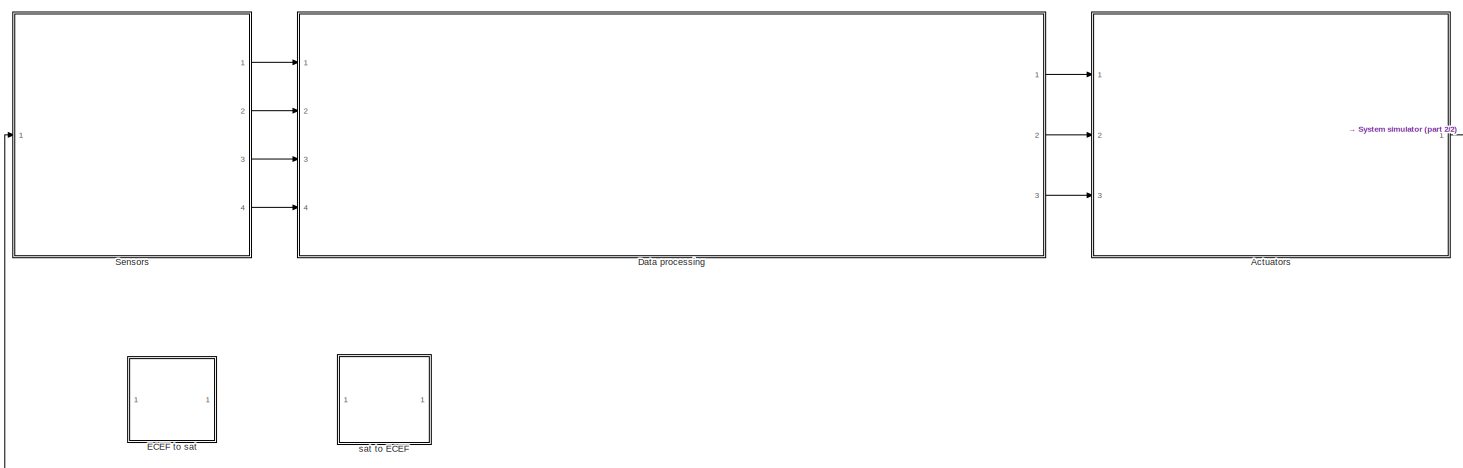
[diagram: root canvas - part 1/2, full width, top band]
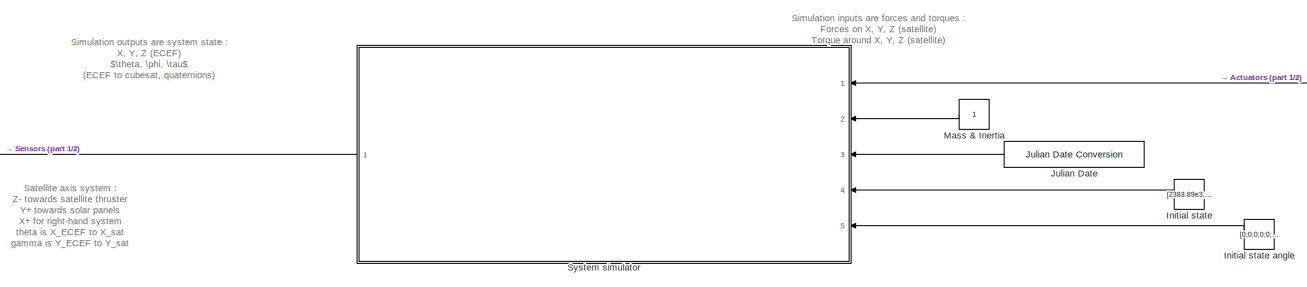
[diagram: root canvas - part 2/2, full width, bottom band]
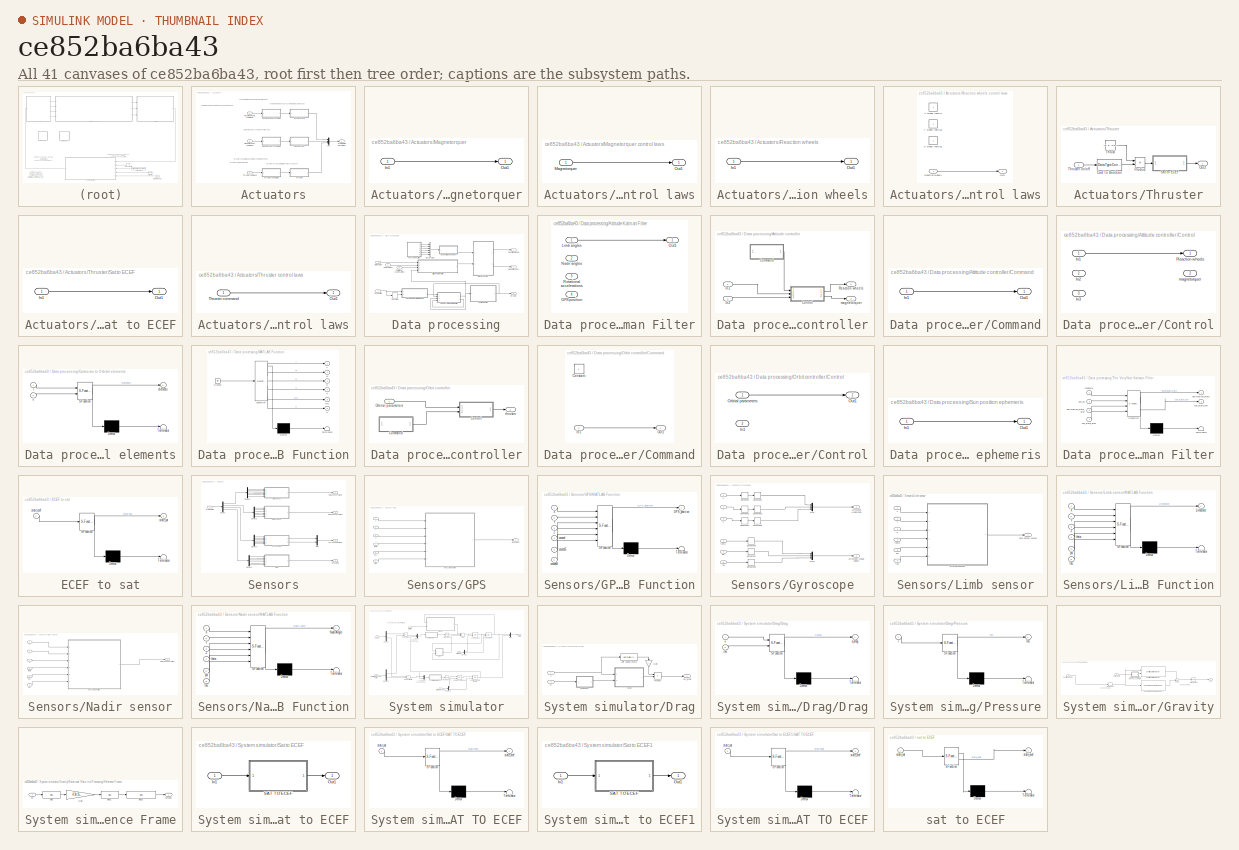
[diagram: thumbnail index - all 41 canvases of the model, root first then tree order]
MODEL slx_ce852ba6ba43
KIND model
CONFIG AbsTol = auto
CONFIG EnableMultiTasking = off
CONFIG FixedStep = auto
CONFIG MaxStep = auto
CONFIG MinStep = auto
CONFIG RelTol = 1e-3
CONFIG SampleTimeConstraint = Unconstrained
CONFIG Solver = VariableStepAuto
CONFIG SolverName = VariableStepAuto
CONFIG StartTime = 0.0
CONFIG StopTime = 10.0
BLOCK [SubSystem] Actuators
  Ports = [3, 1]
  RequestExecContextInheritance = off
BLOCK [SubSystem] Actuators/Magnetorquer
  Ports = [1, 1]
  RequestExecContextInheritance = off
BLOCK [Inport] Actuators/Magnetorquer command
  Port = 2
BLOCK [SubSystem] Actuators/Magnetorquer control laws
  Ports = [1, 1]
  RequestExecContextInheritance = off
BLOCK [Inport] Actuators/Magnetorquer control laws/Magnetorquer
BLOCK [Outport] Actuators/Magnetorquer control laws/Out1
BLOCK [Inport] Actuators/Magnetorquer/In1
BLOCK [Outport] Actuators/Magnetorquer/Out1
BLOCK [Mux] Actuators/Mux
  DisplayOption = bar
  Inputs = 3
  Ports = [3, 1]
BLOCK [SubSystem] Actuators/Reaction wheels
  Ports = [1, 1]
  RequestExecContextInheritance = off
BLOCK [Inport] Actuators/Reaction wheels command
BLOCK [SubSystem] Actuators/Reaction wheels control laws
  Ports = [1, 1]
  RequestExecContextInheritance = off
BLOCK [Outport] Actuators/Reaction wheels control laws/Out1
BLOCK [Inport] Actuators/Reaction wheels control laws/Reaction wheels
BLOCK [Constant] Actuators/Reaction wheels control laws/X wheel inertia
BLOCK [Constant] Actuators/Reaction wheels control laws/Y wheel inertia1
BLOCK [Constant] Actuators/Reaction wheels control laws/Z wheel inertia1
BLOCK [Inport] Actuators/Reaction wheels/In1
BLOCK [Outport] Actuators/Reaction wheels/Out1
BLOCK [Outport] Actuators/System state derivatives
BLOCK [SubSystem] Actuators/Thruster
  Ports = [1, 1]
  RequestExecContextInheritance = off
BLOCK [Inport] Actuators/Thruster command
  Port = 3
BLOCK [SubSystem] Actuators/Thruster control laws
  Ports = [1, 1]
  RequestExecContextInheritance = off
BLOCK [Outport] Actuators/Thruster control laws/Out1
BLOCK [Inport] Actuators/Thruster control laws/Thruster command
BLOCK [DataTypeConversion] Actuators/Thruster/Cast To Boolean
  OutDataTypeStr = boolean
  RndMeth = Floor
  SaturateOnIntegerOverflow = off
BLOCK [Outport] Actuators/Thruster/Out2
BLOCK [Product] Actuators/Thruster/Product
  Ports = [2, 1]
BLOCK [SubSystem] Actuators/Thruster/Sat to ECEF
  Ports = [1, 1]
  RequestExecContextInheritance = off
BLOCK [Inport] Actuators/Thruster/Sat to ECEF/In1
BLOCK [Outport] Actuators/Thruster/Sat to ECEF/Out1
BLOCK [Constant] Actuators/Thruster/Thrust
  Value = [0; 0; -0.0001]
BLOCK [Inport] Actuators/Thruster/Thruster on//off
BLOCK [SubSystem] Data processing
  Ports = [4, 3]
  RequestExecContextInheritance = off
BLOCK [SubSystem] Data processing/Attitude Kalman Filter
  Ports = [4, 1]
  RequestExecContextInheritance = off
BLOCK [Inport] Data processing/Attitude Kalman Filter/GPS position
  Port = 4
BLOCK [Inport] Data processing/Attitude Kalman Filter/Limb angles
BLOCK [Inport] Data processing/Attitude Kalman Filter/Nadir angles
  Port = 2
BLOCK [Outport] Data processing/Attitude Kalman Filter/Out1
BLOCK [Inport] Data processing/Attitude Kalman Filter/Rotational accelerations
  Port = 3
BLOCK [SubSystem] Data processing/Attitude controller
  Ports = [2, 2]
  RequestExecContextInheritance = off
BLOCK [SubSystem] Data processing/Attitude controller/Command
  Ports = [1, 1]
  RequestExecContextInheritance = off
BLOCK [Inport] Data processing/Attitude controller/Command/In1
BLOCK [Outport] Data processing/Attitude controller/Command/Out1
BLOCK [SubSystem] Data processing/Attitude controller/Control
  Ports = [3, 2]
  RequestExecContextInheritance = off
BLOCK [Inport] Data processing/Attitude controller/Control/In1
BLOCK [Inport] Data processing/Attitude controller/Control/In2
  Port = 2
BLOCK [Inport] Data processing/Attitude controller/Control/In3
  Port = 3
BLOCK [Outport] Data processing/Attitude controller/Control/Reaction wheels
BLOCK [Outport] Data processing/Attitude controller/Control/magnetorquer
  Port = 2
BLOCK [Inport] Data processing/Attitude controller/In1
BLOCK [Inport] Data processing/Attitude controller/In2
  Port = 2
BLOCK [Outport] Data processing/Attitude controller/Reaction wheels
BLOCK [Outport] Data processing/Attitude controller/magnetorquer
  Port = 2
BLOCK [BusCreator] Data processing/Bus Creator
  DisplayOption = bar
  InheritFromInputs = on
  Inputs = 6
  Ports = [6, 1]
BLOCK [SubSystem] Data processing/Cartesian to Orbital elements
  ErrorFcn = Stateflow.Translate.translate
  PermitHierarchicalResolution = ExplicitOnly
  Ports = [2, 1]
  RequestExecContextInheritance = off
  SFBlockType = MATLAB Function
  TreatAsAtomicUnit = on
BLOCK [Demux] Data processing/Cartesian to Orbital elements/ Demux 
  Outputs = 1
  Ports = [1, 1]
BLOCK [S-Function] Data processing/Cartesian to Orbital elements/ SFunction 
  EnableBusSupport = off
  FunctionName = sf_sfun
  PortCounts = [2 2]
  Ports = [2, 2]
  SFcnIsStateOwnerBlock = off
  SFunctionDeploymentMode = off
  Tag = Stateflow S-Function 9
BLOCK [Terminator] Data processing/Cartesian to Orbital elements/ Terminator 
BLOCK [Outport] Data processing/Cartesian to Orbital elements/elements
BLOCK [Inport] Data processing/Cartesian to Orbital elements/r
BLOCK [Inport] Data processing/Cartesian to Orbital elements/v
  Port = 2
BLOCK [Derivative] Data processing/Derivative
BLOCK [Inport] Data processing/GPS position
  Port = 4
BLOCK [Inport] Data processing/Limb angles
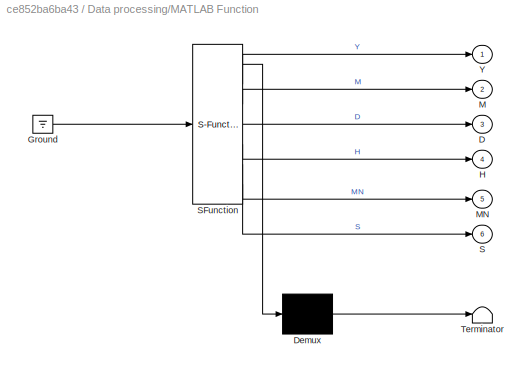
BLOCK [SubSystem] Data processing/MATLAB Function
  ErrorFcn = Stateflow.Translate.translate
  PermitHierarchicalResolution = ExplicitOnly
  Ports = [0, 6]
  RequestExecContextInheritance = off
  SFBlockType = MATLAB Function
  TreatAsAtomicUnit = on
BLOCK [Demux] Data processing/MATLAB Function/ Demux 
  Outputs = 1
  Ports = [1, 1]
BLOCK [Ground] Data processing/MATLAB Function/ Ground 
BLOCK [S-Function] Data processing/MATLAB Function/ SFunction 
  EnableBusSupport = off
  FunctionName = sf_sfun
  PortCounts = [1 7]
  Ports = [1, 7]
  SFcnIsStateOwnerBlock = off
  SFunctionDeploymentMode = off
  Tag = Stateflow S-Function 2
BLOCK [Terminator] Data processing/MATLAB Function/ Terminator 
BLOCK [Outport] Data processing/MATLAB Function/D
  Port = 3
BLOCK [Outport] Data processing/MATLAB Function/H
  Port = 4
BLOCK [Outport] Data processing/MATLAB Function/M
  Port = 2
BLOCK [Outport] Data processing/MATLAB Function/MN
  Port = 5
BLOCK [Outport] Data processing/MATLAB Function/S
  Port = 6
BLOCK [Outport] Data processing/MATLAB Function/Y
BLOCK [Inport] Data processing/Nadir angles
  Port = 2
BLOCK [SubSystem] Data processing/Orbit controller
  Ports = [1, 1]
  RequestExecContextInheritance = off
BLOCK [SubSystem] Data processing/Orbit controller/Command
  Ports = [1, 1]
  RequestExecContextInheritance = off
BLOCK [Constant] Data processing/Orbit controller/Command/Constant
BLOCK [Inport] Data processing/Orbit controller/Command/In1
BLOCK [Outport] Data processing/Orbit controller/Command/Out1
BLOCK [SubSystem] Data processing/Orbit controller/Control
  Ports = [2, 1]
  RequestExecContextInheritance = off
BLOCK [Inport] Data processing/Orbit controller/Control/In1
  Port = 2
BLOCK [Inport] Data processing/Orbit controller/Control/Orbital parameters
BLOCK [Outport] Data processing/Orbit controller/Control/Out1
BLOCK [Inport] Data processing/Orbit controller/Orbital parameters
BLOCK [Outport] Data processing/Orbit controller/thruster
BLOCK [Outport] Data processing/Reaction wheels
BLOCK [Inport] Data processing/Rotational accelerations
  Port = 3
BLOCK [SubSystem] Data processing/Sun position ephemeris
  Ports = [1, 1]
  RequestExecContextInheritance = off
BLOCK [Inport] Data processing/Sun position ephemeris/In1
BLOCK [Outport] Data processing/Sun position ephemeris/Out1
BLOCK [SubSystem] Data processing/The Very Nice Kalman Filter
  ErrorFcn = Stateflow.Translate.translate
  PermitHierarchicalResolution = ExplicitOnly
  Ports = [4, 2]
  RequestExecContextInheritance = off
  SFBlockType = MATLAB Function
  TreatAsAtomicUnit = on
BLOCK [Demux] Data processing/The Very Nice Kalman Filter/ Demux 
  Outputs = 1
  Ports = [1, 1]
BLOCK [S-Function] Data processing/The Very Nice Kalman Filter/ SFunction 
  EnableBusSupport = off
  FunctionName = sf_sfun
  PortCounts = [4 3]
  Ports = [4, 3]
  SFcnIsStateOwnerBlock = off
  SFunctionDeploymentMode = off
  Tag = Stateflow S-Function 10
BLOCK [Terminator] Data processing/The Very Nice Kalman Filter/ Terminator 
BLOCK [Inport] Data processing/The Very Nice Kalman Filter/action
  Port = 2
BLOCK [Outport] Data processing/The Very Nice Kalman Filter/cov_state_corr
  Port = 2
BLOCK [Inport] Data processing/The Very Nice Kalman Filter/cov_state_prec
  Port = 4
BLOCK [Outport] Data processing/The Very Nice Kalman Filter/estimation_state
BLOCK [Inport] Data processing/The Very Nice Kalman Filter/estimation_state_prec
  Port = 3
BLOCK [Inport] Data processing/The Very Nice Kalman Filter/measure
BLOCK [Outport] Data processing/magnetorquer
  Port = 2
BLOCK [Outport] Data processing/thruster
  Port = 3
BLOCK [SubSystem] ECEF to sat
  Commented = on
  ErrorFcn = Stateflow.Translate.translate
  PermitHierarchicalResolution = ExplicitOnly
  Ports = [1, 1]
  RequestExecContextInheritance = off
  SFBlockType = MATLAB Function
  TreatAsAtomicUnit = on
BLOCK [Demux] ECEF to sat/ Demux 
  Outputs = 1
  Ports = [1, 1]
BLOCK [S-Function] ECEF to sat/ SFunction 
  EnableBusSupport = off
  FunctionName = sf_sfun
  PortCounts = [1 2]
  Ports = [1, 2]
  SFcnIsStateOwnerBlock = off
  SFunctionDeploymentMode = off
  Tag = Stateflow S-Function 1
BLOCK [Terminator] ECEF to sat/ Terminator 
BLOCK [Inport] ECEF to sat/state_ecef
BLOCK [Outport] ECEF to sat/state_sat
BLOCK [Constant] Initial state
  NameLocation = top
  Value = [2383.89e3;2594.67e3;5906.12e3;-2871.828;-5954.63;3774.64]
BLOCK [Constant] Initial state angle
  NameLocation = top
  Value = [0;0;0;0;0;0]
BLOCK [Reference] Julian Date  REF=aerolibconvert2/Julian Date Conversion
  NameLocation = top
  Ports = [0, 1]
  SourceBlock = aerolibconvert2/Julian Date Conversion
  SourceProductBaseCode = AE
  SourceType = JulianDate
BLOCK [Constant] Mass & Inertia
  NameLocation = top
BLOCK [SubSystem] Sensors
  Ports = [1, 4]
  RequestExecContextInheritance = off
BLOCK [Demux] Sensors/Demux
  Ports = [1, 4]
BLOCK [Demux] Sensors/Demux1
  Outputs = 6
  Ports = [1, 6]
BLOCK [Demux] Sensors/Demux2
  Outputs = 6
  Ports = [1, 6]
BLOCK [Demux] Sensors/Demux3
  Outputs = 6
  Ports = [1, 6]
BLOCK [Demux] Sensors/Demux4
  Outputs = 6
  Ports = [1, 6]
BLOCK [SubSystem] Sensors/GPS
  Ports = [6, 1]
  RequestExecContextInheritance = off
BLOCK [Outport] Sensors/GPS output
  Port = 2
BLOCK [Outport] Sensors/GPS/GPS output
BLOCK [SubSystem] Sensors/GPS/MATLAB Function
  ErrorFcn = Stateflow.Translate.translate
  PermitHierarchicalResolution = ExplicitOnly
  Ports = [6, 1]
  RequestExecContextInheritance = off
  SFBlockType = MATLAB Function
  TreatAsAtomicUnit = on
BLOCK [Demux] Sensors/GPS/MATLAB Function/ Demux 
  Outputs = 1
  Ports = [1, 1]
BLOCK [S-Function] Sensors/GPS/MATLAB Function/ SFunction 
  EnableBusSupport = off
  FunctionName = sf_sfun
  PortCounts = [6 2]
  Ports = [6, 2]
  SFcnIsStateOwnerBlock = off
  SFunctionDeploymentMode = off
  Tag = Stateflow S-Function 5
BLOCK [Terminator] Sensors/GPS/MATLAB Function/ Terminator 
BLOCK [Outport] Sensors/GPS/MATLAB Function/GPS_position
BLOCK [Inport] Sensors/GPS/MATLAB Function/X
BLOCK [Inport] Sensors/GPS/MATLAB Function/Y
  Port = 2
BLOCK [Inport] Sensors/GPS/MATLAB Function/Z
  Port = 3
BLOCK [Inport] Sensors/GPS/MATLAB Function/unused
  Port = 4
BLOCK [Inport] Sensors/GPS/MATLAB Function/unused5
  Port = 5
BLOCK [Inport] Sensors/GPS/MATLAB Function/unused6
  Port = 6
BLOCK [Inport] Sensors/GPS/X
BLOCK [Inport] Sensors/GPS/Y
  Port = 2
BLOCK [Inport] Sensors/GPS/Z
  Port = 3
BLOCK [Inport] Sensors/GPS/phi
  Port = 5
BLOCK [Inport] Sensors/GPS/tau
  Port = 6
BLOCK [Inport] Sensors/GPS/theta
  Port = 4
BLOCK [SubSystem] Sensors/Gyroscope
  Ports = [6, 2]
  RequestExecContextInheritance = off
BLOCK [Outport] Sensors/Gyroscope output
  Port = 3
BLOCK [Derivative] Sensors/Gyroscope/Derivative
BLOCK [Derivative] Sensors/Gyroscope/Derivative1
BLOCK [Derivative] Sensors/Gyroscope/Derivative2
BLOCK [Derivative] Sensors/Gyroscope/Derivative3
BLOCK [Derivative] Sensors/Gyroscope/Derivative4
BLOCK [Derivative] Sensors/Gyroscope/Derivative5
BLOCK [Derivative] Sensors/Gyroscope/Derivative6
BLOCK [Derivative] Sensors/Gyroscope/Derivative7
BLOCK [Derivative] Sensors/Gyroscope/Derivative8
BLOCK [Outport] Sensors/Gyroscope/Gyroscope Acceleration
BLOCK [Outport] Sensors/Gyroscope/Gyroscope Angular velocity
  Port = 2
BLOCK [Mux] Sensors/Gyroscope/Mux
  DisplayOption = bar
  Inputs = 3
  Ports = [3, 1]
BLOCK [Mux] Sensors/Gyroscope/Mux1
  DisplayOption = bar
  Inputs = 3
  Ports = [3, 1]
BLOCK [Inport] Sensors/Gyroscope/X
BLOCK [Inport] Sensors/Gyroscope/Y
  Port = 2
BLOCK [Inport] Sensors/Gyroscope/Z
  Port = 3
BLOCK [Inport] Sensors/Gyroscope/phi
  Port = 5
BLOCK [Inport] Sensors/Gyroscope/tau
  Port = 6
BLOCK [Inport] Sensors/Gyroscope/theta
  Port = 4
BLOCK [SubSystem] Sensors/Limb sensor
  Ports = [6, 1]
  RequestExecContextInheritance = off
BLOCK [Outport] Sensors/Limb sensor output
BLOCK [Outport] Sensors/Limb sensor/Limb sensor output 
BLOCK [SubSystem] Sensors/Limb sensor/MATLAB Function
  ErrorFcn = Stateflow.Translate.translate
  PermitHierarchicalResolution = ExplicitOnly
  Ports = [6, 1]
  RequestExecContextInheritance = off
  SFBlockType = MATLAB Function
  TreatAsAtomicUnit = on
BLOCK [Demux] Sensors/Limb sensor/MATLAB Function/ Demux 
  Outputs = 1
  Ports = [1, 1]
BLOCK [S-Function] Sensors/Limb sensor/MATLAB Function/ SFunction 
  EnableBusSupport = off
  FunctionName = sf_sfun
  PortCounts = [6 2]
  Ports = [6, 2]
  SFcnIsStateOwnerBlock = off
  SFunctionDeploymentMode = off
  Tag = Stateflow S-Function 6
BLOCK [Terminator] Sensors/Limb sensor/MATLAB Function/ Terminator 
BLOCK [Outport] Sensors/Limb sensor/MATLAB Function/Limbstate
BLOCK [Inport] Sensors/Limb sensor/MATLAB Function/X
BLOCK [Inport] Sensors/Limb sensor/MATLAB Function/Y
  Port = 2
BLOCK [Inport] Sensors/Limb sensor/MATLAB Function/Z
  Port = 3
BLOCK [Inport] Sensors/Limb sensor/MATLAB Function/phi
  Port = 5
BLOCK [Inport] Sensors/Limb sensor/MATLAB Function/tau
  Port = 6
BLOCK [Inport] Sensors/Limb sensor/MATLAB Function/theta
  Port = 4
BLOCK [Inport] Sensors/Limb sensor/X
BLOCK [Inport] Sensors/Limb sensor/Y
  Port = 2
BLOCK [Inport] Sensors/Limb sensor/Z
  Port = 3
BLOCK [Inport] Sensors/Limb sensor/phi
  Port = 5
BLOCK [Inport] Sensors/Limb sensor/tau
  Port = 6
BLOCK [Inport] Sensors/Limb sensor/theta
  Port = 4
BLOCK [Mux] Sensors/Mux
  DisplayOption = bar
  Inputs = 2
  Ports = [2, 1]
BLOCK [SubSystem] Sensors/Nadir sensor
  Ports = [6, 1]
  RequestExecContextInheritance = off
BLOCK [Outport] Sensors/Nadir sensor output
  Port = 4
BLOCK [SubSystem] Sensors/Nadir sensor/MATLAB Function
  ErrorFcn = Stateflow.Translate.translate
  PermitHierarchicalResolution = ExplicitOnly
  Ports = [6, 1]
  RequestExecContextInheritance = off
  SFBlockType = MATLAB Function
  TreatAsAtomicUnit = on
BLOCK [Demux] Sensors/Nadir sensor/MATLAB Function/ Demux 
  Outputs = 1
  Ports = [1, 1]
BLOCK [S-Function] Sensors/Nadir sensor/MATLAB Function/ SFunction 
  EnableBusSupport = off
  FunctionName = sf_sfun
  PortCounts = [6 2]
  Ports = [6, 2]
  SFcnIsStateOwnerBlock = off
  SFunctionDeploymentMode = off
  Tag = Stateflow S-Function 7
BLOCK [Terminator] Sensors/Nadir sensor/MATLAB Function/ Terminator 
BLOCK [Outport] Sensors/Nadir sensor/MATLAB Function/NadirAngle
BLOCK [Inport] Sensors/Nadir sensor/MATLAB Function/X
BLOCK [Inport] Sensors/Nadir sensor/MATLAB Function/Y
  Port = 2
BLOCK [Inport] Sensors/Nadir sensor/MATLAB Function/Z
  Port = 3
BLOCK [Inport] Sensors/Nadir sensor/MATLAB Function/phi
  Port = 5
BLOCK [Inport] Sensors/Nadir sensor/MATLAB Function/tau
  Port = 6
BLOCK [Inport] Sensors/Nadir sensor/MATLAB Function/theta
  Port = 4
BLOCK [Outport] Sensors/Nadir sensor/Nadir sensor output
BLOCK [Inport] Sensors/Nadir sensor/X
BLOCK [Inport] Sensors/Nadir sensor/Y
  Port = 2
BLOCK [Inport] Sensors/Nadir sensor/Z
  Port = 3
BLOCK [Inport] Sensors/Nadir sensor/phi
  Port = 5
BLOCK [Inport] Sensors/Nadir sensor/tau
  Port = 6
BLOCK [Inport] Sensors/Nadir sensor/theta
  Port = 4
BLOCK [Inport] Sensors/System state
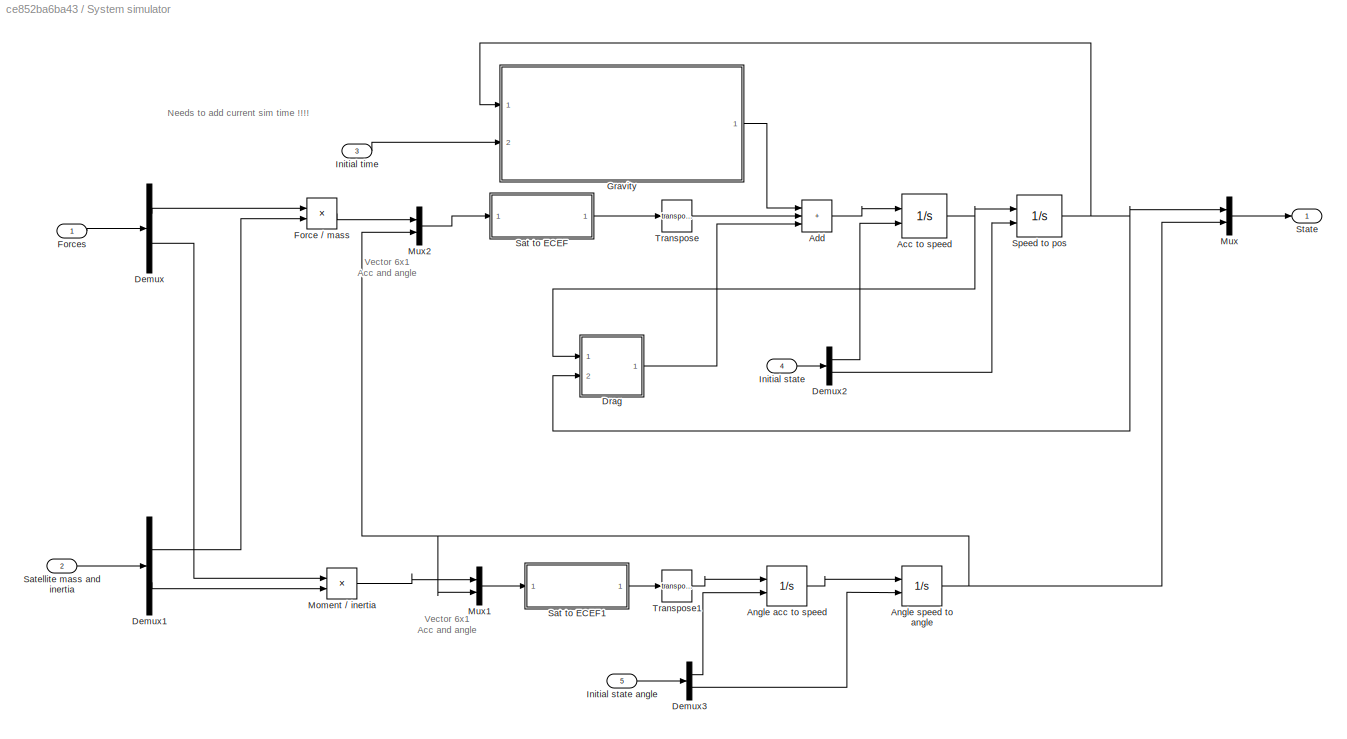
BLOCK [SubSystem] System simulator
  Ports = [5, 1]
  RequestExecContextInheritance = off
BLOCK [Integrator] System simulator/Acc to speed
  InitialCondition = [-2871.828;-5954.63;3774.64]
  InitialConditionSource = external
  Ports = [2, 1]
BLOCK [Sum] System simulator/Add
  IconShape = rectangular
  Inputs = +++
  Ports = [3, 1]
BLOCK [Integrator] System simulator/Angle acc to speed
  InitialConditionSource = external
  Ports = [2, 1]
BLOCK [Integrator] System simulator/Angle speed to angle
  InitialConditionSource = external
  Ports = [2, 1]
BLOCK [Demux] System simulator/Demux
  Outputs = 2
  Ports = [1, 2]
BLOCK [Demux] System simulator/Demux1
  Outputs = 2
  Ports = [1, 2]
BLOCK [Demux] System simulator/Demux2
  Outputs = 2
  Ports = [1, 2]
BLOCK [Demux] System simulator/Demux3
  Outputs = 2
  Ports = [1, 2]
BLOCK [SubSystem] System simulator/Drag
  Ports = [2, 1]
  RequestExecContextInheritance = off
BLOCK [Outport] System simulator/Drag/Acc_drag
BLOCK [SubSystem] System simulator/Drag/Drag
  ErrorFcn = Stateflow.Translate.translate
  PermitHierarchicalResolution = ExplicitOnly
  Ports = [2, 1]
  RequestExecContextInheritance = off
  SFBlockType = MATLAB Function
  TreatAsAtomicUnit = on
BLOCK [Demux] System simulator/Drag/Drag/ Demux 
  Outputs = 1
  Ports = [1, 1]
BLOCK [S-Function] System simulator/Drag/Drag/ SFunction 
  EnableBusSupport = off
  FunctionName = sf_sfun
  PortCounts = [2 2]
  Ports = [2, 2]
  SFcnIsStateOwnerBlock = off
  SFunctionDeploymentMode = off
  Tag = Stateflow S-Function 3
BLOCK [Terminator] System simulator/Drag/Drag/ Terminator 
BLOCK [Outport] System simulator/Drag/Drag/a_drag
BLOCK [Inport] System simulator/Drag/Drag/rho
  Port = 2
BLOCK [Inport] System simulator/Drag/Drag/v
BLOCK [Gain] System simulator/Drag/Gain
  Gain = -1
  NameLocation = left
BLOCK [SubSystem] System simulator/Drag/Pressure
  ErrorFcn = Stateflow.Translate.translate
  PermitHierarchicalResolution = ExplicitOnly
  Ports = [1, 1]
  RequestExecContextInheritance = off
  SFBlockType = MATLAB Function
  TreatAsAtomicUnit = on
BLOCK [Demux] System simulator/Drag/Pressure/ Demux 
  Outputs = 1
  Ports = [1, 1]
BLOCK [S-Function] System simulator/Drag/Pressure/ SFunction 
  EnableBusSupport = off
  FunctionName = sf_sfun
  PortCounts = [1 2]
  Ports = [1, 2]
  SFcnIsStateOwnerBlock = off
  SFunctionDeploymentMode = off
  Tag = Stateflow S-Function 4
BLOCK [Terminator] System simulator/Drag/Pressure/ Terminator 
BLOCK [Inport] System simulator/Drag/Pressure/r
BLOCK [Outport] System simulator/Drag/Pressure/rho
BLOCK [Product] System simulator/Drag/Product
  Ports = [2, 1]
BLOCK [Inport] System simulator/Drag/R
  Port = 2
BLOCK [Reference] System simulator/Drag/Unit Speed vector  REF=vrlib/Utilities/Normalize Vector
  Ports = [1, 1]
  SourceBlock = vrlib/Utilities/Normalize Vector
  SourceProductBaseCode = SL
  SourceType = Normalize Vector
BLOCK [Inport] System simulator/Drag/V
BLOCK [Product] System simulator/Force // mass
  Inputs = */
  Ports = [2, 1]
BLOCK [Inport] System simulator/Forces
BLOCK [SubSystem] System simulator/Gravity
  Ports = [2, 1]
  RequestExecContextInheritance = off
BLOCK [Outport] System simulator/Gravity/Acc
BLOCK [Reference] System simulator/Gravity/Centrifugal Effect Model  REF=aerolibgravity2/Centrifugal Effect Model
  Ports = [2, 1]
  SourceBlock = aerolibgravity2/Centrifugal Effect Model
  SourceProductBaseCode = AE
  SourceType = Centrifugal Effect Model
BLOCK [Inport] System simulator/Gravity/Julian date
  Port = 2
BLOCK [Inport] System simulator/Gravity/Position vector
BLOCK [Reshape] System simulator/Gravity/Reshape
  OutputDimensionality = Row vector (2-D)
  Ports = [1, 1]
BLOCK [SubSystem] System simulator/Gravity/Rotational Rate in a Precessing Reference Frame
  Ports = [1, 1]
  RequestExecContextInheritance = off
BLOCK [Bias] System simulator/Gravity/Rotational Rate in a Precessing Reference Frame/Bias
  Bias = -2451545
  SaturateOnIntegerOverflow = off
BLOCK [Bias] System simulator/Gravity/Rotational Rate in a Precessing Reference Frame/Bias1
  Bias = 7.086e-12
  SaturateOnIntegerOverflow = off
BLOCK [Bias] System simulator/Gravity/Rotational Rate in a Precessing Reference Frame/Bias2
  Bias = 7.2921151467e-5
  SaturateOnIntegerOverflow = off
BLOCK [Gain] System simulator/Gravity/Rotational Rate in a Precessing Reference Frame/Gain
  Gain = 4.3e-15/36525
BLOCK [Inport] System simulator/Gravity/Rotational Rate in a Precessing Reference Frame/JD
BLOCK [Outport] System simulator/Gravity/Rotational Rate in a Precessing Reference Frame/omega
BLOCK [Sum] System simulator/Gravity/Sum1
  Inputs = ++|
  Ports = [2, 1]
BLOCK [Math] System simulator/Gravity/Transpose
  Operator = transpose
  Ports = [1, 1]
  SignedPower = on
BLOCK [Reference] System simulator/Gravity/Zonal Harmonic Gravity Model  REF=aerolibgravity2/Zonal Harmonic Gravity Model
  Ports = [1, 1]
  SourceBlock = aerolibgravity2/Zonal Harmonic Gravity Model
  SourceProductBaseCode = AE
  SourceType = Zonal Harmonic Gravity Model
BLOCK [Inport] System simulator/Initial state
  Port = 4
BLOCK [Inport] System simulator/Initial state angle
  Port = 5
BLOCK [Inport] System simulator/Initial time
  Port = 3
BLOCK [Product] System simulator/Moment // inertia
  Inputs = */
  Ports = [2, 1]
BLOCK [Mux] System simulator/Mux
  DisplayOption = bar
  Inputs = 2
  Ports = [2, 1]
BLOCK [Mux] System simulator/Mux1
  DisplayOption = bar
  Inputs = 2
  Ports = [2, 1]
BLOCK [Mux] System simulator/Mux2
  DisplayOption = bar
  Inputs = 2
  Ports = [2, 1]
BLOCK [SubSystem] System simulator/Sat to ECEF
  Ports = [1, 1]
  RequestExecContextInheritance = off
BLOCK [Inport] System simulator/Sat to ECEF/In1
BLOCK [Outport] System simulator/Sat to ECEF/Out1
BLOCK [SubSystem] System simulator/Sat to ECEF/SAT TO ECEF
  ErrorFcn = Stateflow.Translate.translate
  PermitHierarchicalResolution = ExplicitOnly
  Ports = [1, 1]
  RequestExecContextInheritance = off
  SFBlockType = MATLAB Function
  TreatAsAtomicUnit = on
BLOCK [Demux] System simulator/Sat to ECEF/SAT TO ECEF/ Demux 
  Outputs = 1
  Ports = [1, 1]
BLOCK [S-Function] System simulator/Sat to ECEF/SAT TO ECEF/ SFunction 
  EnableBusSupport = off
  FunctionName = sf_sfun
  PortCounts = [1 2]
  Ports = [1, 2]
  SFcnIsStateOwnerBlock = off
  SFunctionDeploymentMode = off
  Tag = Stateflow S-Function 11
BLOCK [Terminator] System simulator/Sat to ECEF/SAT TO ECEF/ Terminator 
BLOCK [Outport] System simulator/Sat to ECEF/SAT TO ECEF/state_ecef
BLOCK [Inport] System simulator/Sat to ECEF/SAT TO ECEF/state_sat
BLOCK [SubSystem] System simulator/Sat to ECEF1
  Ports = [1, 1]
  RequestExecContextInheritance = off
BLOCK [Inport] System simulator/Sat to ECEF1/In1
BLOCK [Outport] System simulator/Sat to ECEF1/Out1
BLOCK [SubSystem] System simulator/Sat to ECEF1/SAT TO ECEF
  ErrorFcn = Stateflow.Translate.translate
  PermitHierarchicalResolution = ExplicitOnly
  Ports = [1, 1]
  RequestExecContextInheritance = off
  SFBlockType = MATLAB Function
  TreatAsAtomicUnit = on
BLOCK [Demux] System simulator/Sat to ECEF1/SAT TO ECEF/ Demux 
  Outputs = 1
  Ports = [1, 1]
BLOCK [S-Function] System simulator/Sat to ECEF1/SAT TO ECEF/ SFunction 
  EnableBusSupport = off
  FunctionName = sf_sfun
  PortCounts = [1 2]
  Ports = [1, 2]
  SFcnIsStateOwnerBlock = off
  SFunctionDeploymentMode = off
  Tag = Stateflow S-Function 12
BLOCK [Terminator] System simulator/Sat to ECEF1/SAT TO ECEF/ Terminator 
BLOCK [Outport] System simulator/Sat to ECEF1/SAT TO ECEF/state_ecef
BLOCK [Inport] System simulator/Sat to ECEF1/SAT TO ECEF/state_sat
BLOCK [Inport] System simulator/Satellite mass and inertia
  Port = 2
BLOCK [Integrator] System simulator/Speed to pos
  InitialCondition = [2383.89e3;2594.67e3;5906.12e3]
  InitialConditionSource = external
  Ports = [2, 1]
BLOCK [Outport] System simulator/State
BLOCK [Math] System simulator/Transpose
  Operator = transpose
  Ports = [1, 1]
BLOCK [Math] System simulator/Transpose1
  Operator = transpose
  Ports = [1, 1]
BLOCK [SubSystem] sat to ECEF
  Commented = on
  ErrorFcn = Stateflow.Translate.translate
  PermitHierarchicalResolution = ExplicitOnly
  Ports = [1, 1]
  RequestExecContextInheritance = off
  SFBlockType = MATLAB Function
  TreatAsAtomicUnit = on
BLOCK [Demux] sat to ECEF/ Demux 
  Outputs = 1
  Ports = [1, 1]
BLOCK [S-Function] sat to ECEF/ SFunction 
  EnableBusSupport = off
  FunctionName = sf_sfun
  PortCounts = [1 2]
  Ports = [1, 2]
  SFcnIsStateOwnerBlock = off
  SFunctionDeploymentMode = off
  Tag = Stateflow S-Function 8
BLOCK [Terminator] sat to ECEF/ Terminator 
BLOCK [Outport] sat to ECEF/state_ecef
BLOCK [Inport] sat to ECEF/state_sat
ANNOTATION (root): Simulation inputs are forces and torques : Forces on X, Y, Z (satellite) Torque around X, Y, Z (satellite)
ANNOTATION (root): Satellite axis system : Z- towards satellite thruster Y+ towards solar panels X+ for right-hand system theta is X_ECEF to X_sat gamma is Y_ECEF to Y_sat tau is Z_ECEF to Z_sat everything in meters ! euler angles XZX
ANNOTATION (root): Simulation outputs are system state : X, Y, Z (ECEF) $\theta, \phi, \tau$ (ECEF to cubesat, quaternions)
ANNOTATION Actuators: control laws find needed electric motor input
ANNOTATION Actuators: Reaction wheels command are needed torque
ANNOTATION Actuators: magnetorquers are ignored for now
ANNOTATION Actuators: reaction wheels physics create a disturbed torque
ANNOTATION Actuators: thruster command is on/off
ANNOTATION Actuators: thruster control laws do nothing (nothing to control)
ANNOTATION Actuators: thruster physics simulate thruster response
ANNOTATION System simulator: Needs to add current sim time !!!!
ANNOTATION System simulator: Vector 6x1 Acc and angle
ANNOTATION System simulator/Gravity: Needs clear-up
LINE Actuators/Magnetorquer command:1 -> Actuators/Magnetorquer control laws:1
LINE Actuators/Magnetorquer control laws/Magnetorquer:1 -> Actuators/Magnetorquer control laws/Out1:1
LINE Actuators/Magnetorquer control laws:1 -> Actuators/Magnetorquer:1
LINE Actuators/Magnetorquer/In1:1 -> Actuators/Magnetorquer/Out1:1
LINE Actuators/Magnetorquer:1 -> Actuators/Mux:2
LINE Actuators/Mux:1 -> Actuators/System state derivatives:1
LINE Actuators/Reaction wheels command:1 -> Actuators/Reaction wheels control laws:1
LINE Actuators/Reaction wheels control laws/Reaction wheels:1 -> Actuators/Reaction wheels control laws/Out1:1
LINE Actuators/Reaction wheels control laws:1 -> Actuators/Reaction wheels:1
LINE Actuators/Reaction wheels/In1:1 -> Actuators/Reaction wheels/Out1:1
LINE Actuators/Reaction wheels:1 -> Actuators/Mux:1
LINE Actuators/Thruster command:1 -> Actuators/Thruster control laws:1
LINE Actuators/Thruster control laws/Thruster command:1 -> Actuators/Thruster control laws/Out1:1
LINE Actuators/Thruster control laws:1 -> Actuators/Thruster:1
LINE Actuators/Thruster/Cast To Boolean:1 -> Actuators/Thruster/Product:2
LINE Actuators/Thruster/Product:1 -> Actuators/Thruster/Sat to ECEF:1
LINE Actuators/Thruster/Sat to ECEF/In1:1 -> Actuators/Thruster/Sat to ECEF/Out1:1
LINE Actuators/Thruster/Sat to ECEF:1 -> Actuators/Thruster/Out2:1
LINE Actuators/Thruster/Thrust:1 -> Actuators/Thruster/Product:1
LINE Actuators/Thruster/Thruster on//off:1 -> Actuators/Thruster/Cast To Boolean:1
LINE Actuators/Thruster:1 -> Actuators/Mux:3
LINE Actuators:1 -> System simulator:1
LINE Data processing/Attitude Kalman Filter/Limb angles:1 -> Data processing/Attitude Kalman Filter/Out1:1
LINE Data processing/Attitude Kalman Filter:1 -> Data processing/Attitude controller:2
LINE Data processing/Attitude controller/Command/In1:1 -> Data processing/Attitude controller/Command/Out1:1
LINE Data processing/Attitude controller/Command:1 -> Data processing/Attitude controller/Control:1
LINE Data processing/Attitude controller/Control/In1:1 -> Data processing/Attitude controller/Control/Reaction wheels:1
LINE Data processing/Attitude controller/Control:1 -> Data processing/Attitude controller/Reaction wheels:1
LINE Data processing/Attitude controller/Control:2 -> Data processing/Attitude controller/magnetorquer:1
LINE Data processing/Attitude controller/In1:1 -> Data processing/Attitude controller/Control:2
LINE Data processing/Attitude controller/In2:1 -> Data processing/Attitude controller/Control:3
LINE Data processing/Attitude controller:1 -> Data processing/Reaction wheels:1
LINE Data processing/Attitude controller:2 -> Data processing/magnetorquer:1
LINE Data processing/Bus Creator:1 -> Data processing/Sun position ephemeris:1
LINE Data processing/Cartesian to Orbital elements:1 -> Data processing/The Very Nice Kalman Filter:1
LINE Data processing/Derivative:1 -> Data processing/Cartesian to Orbital elements:2
NET Data processing/GPS position:1 -> Data processing/Cartesian to Orbital elements:1, Data processing/Derivative:1
LINE Data processing/Limb angles:1 -> Data processing/Attitude Kalman Filter:1
LINE Data processing/MATLAB Function:1 -> Data processing/Bus Creator:1
LINE Data processing/MATLAB Function:2 -> Data processing/Bus Creator:2
LINE Data processing/MATLAB Function:3 -> Data processing/Bus Creator:3
LINE Data processing/MATLAB Function:4 -> Data processing/Bus Creator:4
LINE Data processing/MATLAB Function:5 -> Data processing/Bus Creator:5
LINE Data processing/MATLAB Function:6 -> Data processing/Bus Creator:6
LINE Data processing/Nadir angles:1 -> Data processing/Attitude Kalman Filter:2
LINE Data processing/Orbit controller/Command/In1:1 -> Data processing/Orbit controller/Command/Out1:1
LINE Data processing/Orbit controller/Command:1 -> Data processing/Orbit controller/Control:2
LINE Data processing/Orbit controller/Control/Orbital parameters:1 -> Data processing/Orbit controller/Control/Out1:1
LINE Data processing/Orbit controller/Control:1 -> Data processing/Orbit controller/thruster:1
LINE Data processing/Orbit controller/Orbital parameters:1 -> Data processing/Orbit controller/Control:1
NET Data processing/Orbit controller:1 -> Data processing/The Very Nice Kalman Filter:2, Data processing/thruster:1
LINE Data processing/Rotational accelerations:1 -> Data processing/Attitude Kalman Filter:3
LINE Data processing/Sun position ephemeris/In1:1 -> Data processing/Sun position ephemeris/Out1:1
LINE Data processing/Sun position ephemeris:1 -> Data processing/Attitude controller:1
NET Data processing/The Very Nice Kalman Filter:1 -> Data processing/Attitude Kalman Filter:4, Data processing/Orbit controller:1, Data processing/The Very Nice Kalman Filter:3
LINE Data processing/The Very Nice Kalman Filter:2 -> Data processing/The Very Nice Kalman Filter:4
LINE Data processing:1 -> Actuators:1
LINE Data processing:2 -> Actuators:2
LINE Data processing:3 -> Actuators:3
LINE Initial state angle:1 -> System simulator:5
LINE Initial state:1 -> System simulator:4
LINE Julian Date:1 -> System simulator:3
LINE Mass & Inertia:1 -> System simulator:2
LINE Sensors/Demux1:1 -> Sensors/Limb sensor:1
LINE Sensors/Demux1:2 -> Sensors/Limb sensor:2
LINE Sensors/Demux1:3 -> Sensors/Limb sensor:3
LINE Sensors/Demux1:4 -> Sensors/Limb sensor:4
LINE Sensors/Demux1:5 -> Sensors/Limb sensor:5
LINE Sensors/Demux1:6 -> Sensors/Limb sensor:6
LINE Sensors/Demux2:1 -> Sensors/Nadir sensor:1
LINE Sensors/Demux2:2 -> Sensors/Nadir sensor:2
LINE Sensors/Demux2:3 -> Sensors/Nadir sensor:3
LINE Sensors/Demux2:4 -> Sensors/Nadir sensor:4
LINE Sensors/Demux2:5 -> Sensors/Nadir sensor:5
LINE Sensors/Demux2:6 -> Sensors/Nadir sensor:6
LINE Sensors/Demux3:1 -> Sensors/GPS:1
LINE Sensors/Demux3:2 -> Sensors/GPS:2
LINE Sensors/Demux3:3 -> Sensors/GPS:3
LINE Sensors/Demux3:4 -> Sensors/GPS:4
LINE Sensors/Demux3:5 -> Sensors/GPS:5
LINE Sensors/Demux3:6 -> Sensors/GPS:6
LINE Sensors/Demux4:1 -> Sensors/Gyroscope:1
LINE Sensors/Demux4:2 -> Sensors/Gyroscope:2
LINE Sensors/Demux4:3 -> Sensors/Gyroscope:3
LINE Sensors/Demux4:4 -> Sensors/Gyroscope:4
LINE Sensors/Demux4:5 -> Sensors/Gyroscope:5
LINE Sensors/Demux4:6 -> Sensors/Gyroscope:6
LINE Sensors/Demux:1 -> Sensors/Demux1:1
LINE Sensors/Demux:2 -> Sensors/Demux2:1
LINE Sensors/Demux:3 -> Sensors/Demux4:1
LINE Sensors/Demux:4 -> Sensors/Demux3:1
LINE Sensors/GPS/MATLAB Function:1 -> Sensors/GPS/GPS output:1
LINE Sensors/GPS/X:1 -> Sensors/GPS/MATLAB Function:1
LINE Sensors/GPS/Y:1 -> Sensors/GPS/MATLAB Function:2
LINE Sensors/GPS/Z:1 -> Sensors/GPS/MATLAB Function:3
LINE Sensors/GPS/phi:1 -> Sensors/GPS/MATLAB Function:5
LINE Sensors/GPS/tau:1 -> Sensors/GPS/MATLAB Function:6
LINE Sensors/GPS/theta:1 -> Sensors/GPS/MATLAB Function:4
LINE Sensors/GPS:1 -> Sensors/GPS output:1
LINE Sensors/Gyroscope/Derivative1:1 -> Sensors/Gyroscope/Mux:1
LINE Sensors/Gyroscope/Derivative2:1 -> Sensors/Gyroscope/Derivative3:1
LINE Sensors/Gyroscope/Derivative3:1 -> Sensors/Gyroscope/Mux:2
LINE Sensors/Gyroscope/Derivative4:1 -> Sensors/Gyroscope/Derivative5:1
LINE Sensors/Gyroscope/Derivative5:1 -> Sensors/Gyroscope/Mux:3
LINE Sensors/Gyroscope/Derivative6:1 -> Sensors/Gyroscope/Mux1:1
LINE Sensors/Gyroscope/Derivative7:1 -> Sensors/Gyroscope/Mux1:2
LINE Sensors/Gyroscope/Derivative8:1 -> Sensors/Gyroscope/Mux1:3
LINE Sensors/Gyroscope/Derivative:1 -> Sensors/Gyroscope/Derivative1:1
LINE Sensors/Gyroscope/Mux1:1 -> Sensors/Gyroscope/Gyroscope Angular velocity:1
LINE Sensors/Gyroscope/Mux:1 -> Sensors/Gyroscope/Gyroscope Acceleration:1
LINE Sensors/Gyroscope/X:1 -> Sensors/Gyroscope/Derivative:1
LINE Sensors/Gyroscope/Y:1 -> Sensors/Gyroscope/Derivative2:1
LINE Sensors/Gyroscope/Z:1 -> Sensors/Gyroscope/Derivative4:1
LINE Sensors/Gyroscope/phi:1 -> Sensors/Gyroscope/Derivative7:1
LINE Sensors/Gyroscope/tau:1 -> Sensors/Gyroscope/Derivative8:1
LINE Sensors/Gyroscope/theta:1 -> Sensors/Gyroscope/Derivative6:1
LINE Sensors/Gyroscope:1 -> Sensors/Mux:1
LINE Sensors/Gyroscope:2 -> Sensors/Mux:2
LINE Sensors/Limb sensor/MATLAB Function:1 -> Sensors/Limb sensor/Limb sensor output :1
LINE Sensors/Limb sensor/X:1 -> Sensors/Limb sensor/MATLAB Function:1
LINE Sensors/Limb sensor/Y:1 -> Sensors/Limb sensor/MATLAB Function:2
LINE Sensors/Limb sensor/Z:1 -> Sensors/Limb sensor/MATLAB Function:3
LINE Sensors/Limb sensor/phi:1 -> Sensors/Limb sensor/MATLAB Function:5
LINE Sensors/Limb sensor/tau:1 -> Sensors/Limb sensor/MATLAB Function:6
LINE Sensors/Limb sensor/theta:1 -> Sensors/Limb sensor/MATLAB Function:4
LINE Sensors/Limb sensor:1 -> Sensors/Limb sensor output:1
LINE Sensors/Mux:1 -> Sensors/Gyroscope output:1
LINE Sensors/Nadir sensor/MATLAB Function:1 -> Sensors/Nadir sensor/Nadir sensor output:1
LINE Sensors/Nadir sensor/X:1 -> Sensors/Nadir sensor/MATLAB Function:1
LINE Sensors/Nadir sensor/Y:1 -> Sensors/Nadir sensor/MATLAB Function:2
LINE Sensors/Nadir sensor/Z:1 -> Sensors/Nadir sensor/MATLAB Function:3
LINE Sensors/Nadir sensor/phi:1 -> Sensors/Nadir sensor/MATLAB Function:5
LINE Sensors/Nadir sensor/tau:1 -> Sensors/Nadir sensor/MATLAB Function:6
LINE Sensors/Nadir sensor/theta:1 -> Sensors/Nadir sensor/MATLAB Function:4
LINE Sensors/Nadir sensor:1 -> Sensors/Nadir sensor output:1
LINE Sensors/System state:1 -> Sensors/Demux:1
LINE Sensors:1 -> Data processing:1
LINE Sensors:2 -> Data processing:2
LINE Sensors:3 -> Data processing:3
LINE Sensors:4 -> Data processing:4
NET System simulator/Acc to speed:1 -> System simulator/Drag:1, System simulator/Speed to pos:1
LINE System simulator/Add:1 -> System simulator/Acc to speed:1
LINE System simulator/Angle acc to speed:1 -> System simulator/Angle speed to angle:1
NET System simulator/Angle speed to angle:1 -> System simulator/Mux1:2, System simulator/Mux2:2, System simulator/Mux:2
LINE System simulator/Demux1:1 -> System simulator/Force // mass:2
LINE System simulator/Demux1:2 -> System simulator/Moment // inertia:2
LINE System simulator/Demux2:1 -> System simulator/Acc to speed:2
LINE System simulator/Demux2:2 -> System simulator/Speed to pos:2
LINE System simulator/Demux3:1 -> System simulator/Angle acc to speed:2
LINE System simulator/Demux3:2 -> System simulator/Angle speed to angle:2
LINE System simulator/Demux:1 -> System simulator/Force // mass:1
LINE System simulator/Demux:2 -> System simulator/Moment // inertia:1
LINE System simulator/Drag/Drag:1 -> System simulator/Drag/Product:2
LINE System simulator/Drag/Gain:1 -> System simulator/Drag/Product:1
LINE System simulator/Drag/Pressure:1 -> System simulator/Drag/Drag:2
LINE System simulator/Drag/Product:1 -> System simulator/Drag/Acc_drag:1
LINE System simulator/Drag/R:1 -> System simulator/Drag/Pressure:1
LINE System simulator/Drag/Unit Speed vector:1 -> System simulator/Drag/Gain:1
NET System simulator/Drag/V:1 -> System simulator/Drag/Drag:1, System simulator/Drag/Unit Speed vector:1
LINE System simulator/Drag:1 -> System simulator/Add:3
LINE System simulator/Force // mass:1 -> System simulator/Mux2:1
LINE System simulator/Forces:1 -> System simulator/Demux:1
LINE System simulator/Gravity/Centrifugal Effect Model:1 -> System simulator/Gravity/Sum1:1
LINE System simulator/Gravity/Julian date:1 -> System simulator/Gravity/Rotational Rate in a Precessing Reference Frame:1
LINE System simulator/Gravity/Position vector:1 -> System simulator/Gravity/Reshape:1
NET System simulator/Gravity/Reshape:1 -> System simulator/Gravity/Centrifugal Effect Model:1, System simulator/Gravity/Zonal Harmonic Gravity Model:1
LINE System simulator/Gravity/Rotational Rate in a Precessing Reference Frame/Bias1:1 -> System simulator/Gravity/Rotational Rate in a Precessing Reference Frame/Bias2:1
LINE System simulator/Gravity/Rotational Rate in a Precessing Reference Frame/Bias2:1 -> System simulator/Gravity/Rotational Rate in a Precessing Reference Frame/omega:1
LINE System simulator/Gravity/Rotational Rate in a Precessing Reference Frame/Bias:1 -> System simulator/Gravity/Rotational Rate in a Precessing Reference Frame/Gain:1
LINE System simulator/Gravity/Rotational Rate in a Precessing Reference Frame/Gain:1 -> System simulator/Gravity/Rotational Rate in a Precessing Reference Frame/Bias1:1
LINE System simulator/Gravity/Rotational Rate in a Precessing Reference Frame/JD:1 -> System simulator/Gravity/Rotational Rate in a Precessing Reference Frame/Bias:1
LINE System simulator/Gravity/Rotational Rate in a Precessing Reference Frame:1 -> System simulator/Gravity/Centrifugal Effect Model:2
LINE System simulator/Gravity/Sum1:1 -> System simulator/Gravity/Transpose:1
LINE System simulator/Gravity/Transpose:1 -> System simulator/Gravity/Acc:1
LINE System simulator/Gravity/Zonal Harmonic Gravity Model:1 -> System simulator/Gravity/Sum1:2
LINE System simulator/Gravity:1 -> System simulator/Add:1
LINE System simulator/Initial state angle:1 -> System simulator/Demux3:1
LINE System simulator/Initial state:1 -> System simulator/Demux2:1
LINE System simulator/Initial time:1 -> System simulator/Gravity:2
LINE System simulator/Moment // inertia:1 -> System simulator/Mux1:1
LINE System simulator/Mux1:1 -> System simulator/Sat to ECEF1:1
LINE System simulator/Mux2:1 -> System simulator/Sat to ECEF:1
LINE System simulator/Mux:1 -> System simulator/State:1
LINE System simulator/Sat to ECEF/In1:1 -> System simulator/Sat to ECEF/SAT TO ECEF:1
LINE System simulator/Sat to ECEF/SAT TO ECEF:1 -> System simulator/Sat to ECEF/Out1:1
LINE System simulator/Sat to ECEF1/In1:1 -> System simulator/Sat to ECEF1/SAT TO ECEF:1
LINE System simulator/Sat to ECEF1/SAT TO ECEF:1 -> System simulator/Sat to ECEF1/Out1:1
LINE System simulator/Sat to ECEF1:1 -> System simulator/Transpose1:1
LINE System simulator/Sat to ECEF:1 -> System simulator/Transpose:1
LINE System simulator/Satellite mass and inertia:1 -> System simulator/Demux1:1
NET System simulator/Speed to pos:1 -> System simulator/Drag:2, System simulator/Gravity:1, System simulator/Mux:1
LINE System simulator/Transpose1:1 -> System simulator/Angle acc to speed:1
LINE System simulator/Transpose:1 -> System simulator/Add:2
LINE System simulator:1 -> Sensors:1
note: NET lines group one-source signal fan-out (src -> all destinations, sorted); 1:1 wires keep LINE
CHART System simulator/Sat to ECEF/SAT TO ECEF states=1 transitions=1
  STATE_LABEL 'eML_blk_kernel()'
  STATE_LABEL 'SCRIPT:\nfunction state_ecef = fcn(state_sat)\n\nx = state_sat(0);\ny = state_sat(1);\nz = state_sat(2);\ntheta = state_sat(3);\nphi = state_sat(4);\ntau = state_sat(5);\n\n% from https://en.wikipedia.org/wiki/Euler_angles\nc1 = cos(theta);\nc2 = cos(phi);\nc3 = cos(tau);\ns1 = sin(theta);\ns2 = sin(phi);\ns3 = sin(tau);\nXZX = [\nc2, -c3*c2, s2*s3;\nc1*s2, c1*c2*c3-s1*s3, -c3*s1-c1*c2*s3;\ns1*s2, c1*s3+c2*c3*s1, c1*...<+43ch>'
CHART System simulator/Sat to ECEF1/SAT TO ECEF states=1 transitions=1
  STATE_LABEL 'eML_blk_kernel()'
  STATE_LABEL 'SCRIPT:\nfunction state_ecef = fcn(state_sat)\n\nx = state_sat(0);\ny = state_sat(1);\nz = state_sat(2);\ntheta = state_sat(3);\nphi = state_sat(4);\ntau = state_sat(5);\n\n% from https://en.wikipedia.org/wiki/Euler_angles\nc1 = cos(theta);\nc2 = cos(phi);\nc3 = cos(tau);\ns1 = sin(theta);\ns2 = sin(phi);\ns3 = sin(tau);\nXZX = [\nc2, -c3*c2, s2*s3;\nc1*s2, c1*c2*c3-s1*s3, -c3*s1-c1*c2*s3;\ns1*s2, c1*s3+c2*c3*s1, c1*...<+43ch>'
CHART ECEF to sat states=1 transitions=1
  STATE_LABEL 'eML_blk_kernel()'
  STATE_LABEL 'SCRIPT:\nfunction state_sat = fcn(state_ecef)\n\n    x = state(0)\n    y = state(1)\n    z = state(2)\n    theta = state(3)\n    phi = state(4)\n    tau = state(5)\n\n    % from https://en.wikipedia.org/wiki/Euler_angles\n    c1 = cos(theta)\n    c2 = cos(phi)\n    c3 = cos(tau)\n    s1 = sin(theta)\n    s2 = sin(phi)\n    s3 = sin(tau)\n    XZX = [\n       c2, -c3*c2, s2*s3;\n       c1*s2, c1*c2*c3-s1*s3, -c3*s1-c1...<+93ch>'
CHART Data processing/MATLAB Function states=1 transitions=1
  STATE_LABEL 'eML_blk_kernel()'
  STATE_LABEL "SCRIPT:\n% https://www.mathworks.com/matlabcentral/answers/30479-how-to-get-system-date-and-time-into-simulink\nfunction [Y, M, D, H, MN, S] = sysClock()\n   coder.extrinsic('clock');\n   Y = 0;\n   M = 0;\n   D = 0;\n   H = 0;\n   MN = 0;\n   S = 0;\n   [Y, M, D, H, MN, S] = clock;\nend"
CHART System simulator/Drag/Drag states=1 transitions=1
  STATE_LABEL 'eML_blk_kernel()'
  STATE_LABEL 'SCRIPT:\nfunction a_drag = fcn(v, rho)\narea = 100e-4;\nmass = 3;\nV = norm(v);\nCd = 1.05;\n\na_drag = -0.5*Cd*(area/mass)*rho*V^2;\n'
CHART System simulator/Drag/Pressure states=1 transitions=1
  STATE_LABEL 'eML_blk_kernel()'
  STATE_LABEL 'SCRIPT:\nfunction rho = fcn(r)\nalt = norm(r);\nA = 1.140564e-10;\nB = -2.130756e-7;\nC = 1.570562e-4;\nD = -0.07029296;\nE = -12.89844;\n\nrho = exp(A*alt^4 + B*alt^3 + C*alt^2 + D*alt + E);\n'
CHART Sensors/GPS/MATLAB Function states=1 transitions=1
  STATE_LABEL 'eML_blk_kernel()'
  STATE_LABEL 'SCRIPT:\nfunction GPS_position    = GPS_function(X, Y, Z, ~, ~, ~)\n\n\nnoise_pos = 0 + (10-0) .* rand(1,1); % bruit pour la position X\nGPS_position_x = X + noise_pos;\nnoise_pos = 0 + (10-0) .* rand(1,1); % bruit pour la position Y\nGPS_position_y = Y + noise_pos;\nnoise_pos = 0 + (10-0) .* rand(1,1); % bruit pour la position Z\nGPS_position_z = Z + noise_pos;\n\nGPS_position = [GPS_position_x; GPS_positio...<+25ch>'
CHART Sensors/Limb sensor/MATLAB Function states=1 transitions=1
  STATE_LABEL 'eML_blk_kernel()'
  STATE_LABEL 'SCRIPT:\nfunction Limbstate  = Limb_function(X, Y, Z, theta, phi, tau)\n% Take as input the postition X,Y,Z and the attitude Theta (rotX), phi\n% (rotY), tau (rotZ).\n% Return the limb state in ECEF ref \n\nnoise = 0 + (0.25-0) .* rand(1,1);\nLimbAngle = acrtan(6371000/ sqrt(X^2 + Y^2 + Z^2)) + noise; % Tan(angle) = opposite * Adj\n\ntau2limb = tau - limbAngle  % angle between tau and limb  \n\n\n\n\nc1 = cos(t...<+228ch>'
CHART Sensors/Nadir sensor/MATLAB Function states=1 transitions=1
  STATE_LABEL 'eML_blk_kernel()'
  STATE_LABEL "SCRIPT:\nfunction NadirAngle   = Nadir_function(X, Y, Z, theta, phi, tau)\n% En faisant l'hypothèse que SystemStates = ([rotX rotY rotZ],[X Y Z])\nnoise = 0 + (0.25-0) .* rand(1,1);\nNadirAngle_x = -X + noise;\nnoise = 0 + (0.25-0) .* rand(1,1);\nNadirAngle_y = -Y + noise;\nnoise = 0 + (0.25-0) .* rand(1,1);\nNadirAngle_z = -Z + noise;\n\n\nvector = -1 .* [NadirAngle_x, NadirAngle_y, NadirAngle_z];\n\nunit_vec...<+356ch>"
CHART sat to ECEF states=1 transitions=1
  STATE_LABEL 'eML_blk_kernel()'
  STATE_LABEL 'SCRIPT:\nfunction state_ecef = fcn(state_sat)\n\n    x = state(0)\n    y = state(1)\n    z = state(2)\n    theta = state(3)\n    phi = state(4)\n    tau = state(5)\n\n    % from https://en.wikipedia.org/wiki/Euler_angles\n    c1 = cos(theta)\n    c2 = cos(phi)\n    c3 = cos(tau)\n    s1 = sin(theta)\n    s2 = sin(phi)\n    s3 = sin(tau)\n    XZX = [\n       c2, -c3*c2, s2*s3;\n       c1*s2, c1*c2*c3-s1*s3, -c3*s1-c1...<+97ch>'
CHART Data processing/Cartesian to Orbital elements states=1 transitions=1
  STATE_LABEL 'eML_blk_kernel()'
  STATE_LABEL 'SCRIPT:\nfunction elements = to_orbital(r,v)\n    % r is x;y;z\n    % v is dx;dy;dz\n    \n    mu = 398600;h = cross(r,v);\n    nR = norm(r); nV = norm(v);\n    a = (2 /nR - nV^2 / mu)^(-1);\n    e = 1 / mu * (cross(v,h) - mu * r ./nR);\n    nE = norm(e);\n    i = acos(h(3) /norm(h));\n    k = [0; 0; 1];\n    n = cross(k,h);\n    \n    if (n(2) < 0)\n        Omega = 2 * pi - arccos(n(1)/norm(n));\n    else\n      ...<+431ch>'
CHART Data processing/The Very Nice Kalman Filter states=1 transitions=1
  STATE_LABEL 'eML_blk_kernel()'
  STATE_LABEL 'SCRIPT:\nfunction [estimation_state, cov_state_corr]= gps_kalman(measure, action, estimation_state_prec, cov_state_prec) \n\n    % measure = [a, e, i, Omega, omega, theta0] \n    % state = [a, e, i, Omega, omega, theta0] \n\n    R = % measure noise covariance\n    Q = % state noise covariance\n    \n    % to find : linearize equations around current state\n    \n    F = % df/dx\n    G = % df/du\n    H = % df/d...<+593ch>'
CHART  states=0 transitions=0
CHART  states=0 transitions=0
CHART  states=0 transitions=0
CHART  states=0 transitions=0
CHART  states=0 transitions=0
CHART  states=0 transitions=0
CHART  states=0 transitions=0
CHART  states=0 transitions=0
CHART  states=0 transitions=0
CHART  states=0 transitions=0
CHART  states=0 transitions=0
CHART  states=0 transitions=0
